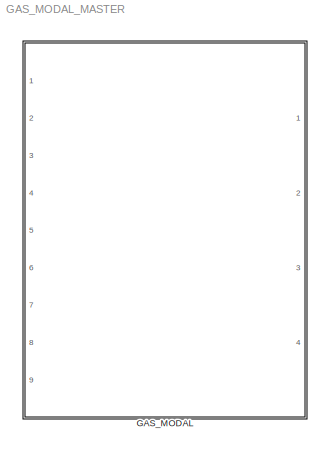
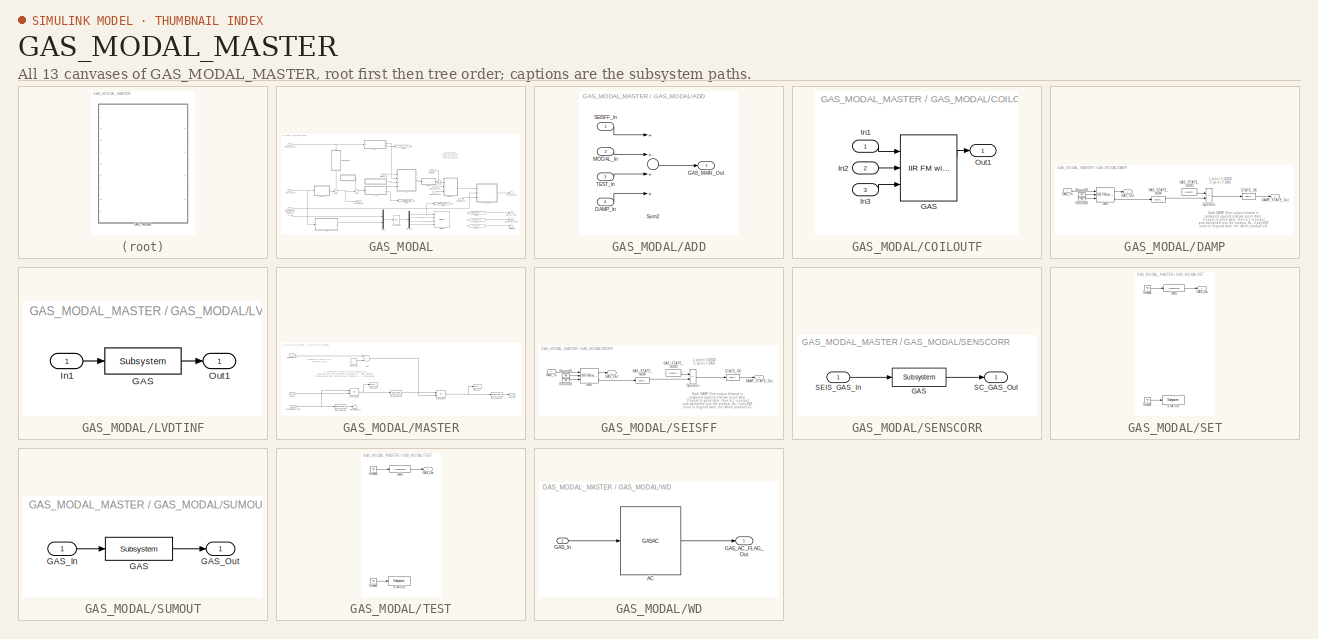
[diagram: thumbnail index - all 13 canvases of the model, root first then tree order]
MODEL GAS_MODAL_MASTER
KIND library
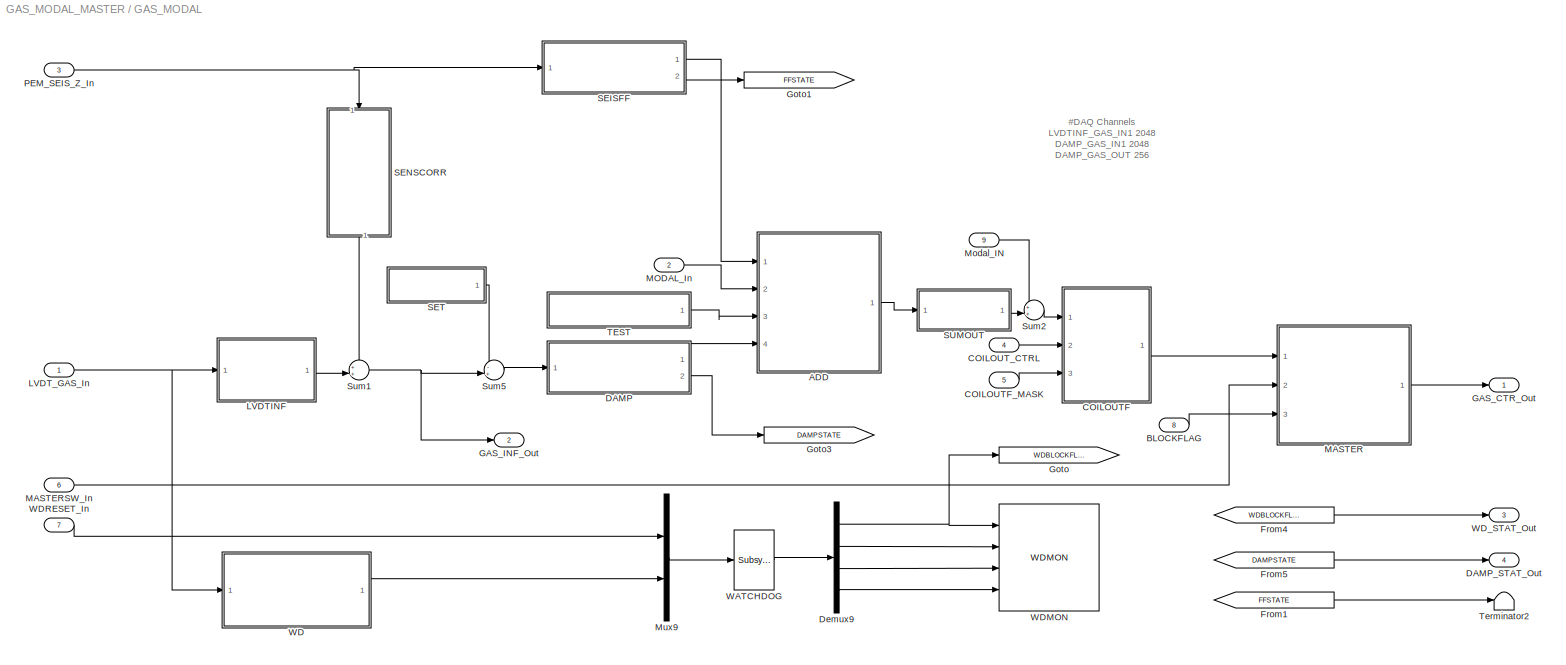
BLOCK [SubSystem] GAS_MODAL
  Ports = [9, 4]
  RequestExecContextInheritance = off
  SID = 1
  Variant = off
BLOCK [SubSystem] GAS_MODAL/ADD
  Ports = [4, 1]
  RequestExecContextInheritance = off
  SID = 7
  Variant = off
BLOCK [Inport] GAS_MODAL/ADD/DAMP_In
  IconDisplay = Port number
  Port = 4
  SID = 9
BLOCK [Outport] GAS_MODAL/ADD/GAS_MAIN_Out
  IconDisplay = Port number
  SID = 15
BLOCK [Inport] GAS_MODAL/ADD/MODAL_In
  IconDisplay = Port number
  Port = 2
  SID = 79
BLOCK [Inport] GAS_MODAL/ADD/SEISFF_In
  IconDisplay = Port number
  SID = 148
BLOCK [Sum] GAS_MODAL/ADD/Sum2
  InputSameDT = off
  Inputs = ++++
  OutDataTypeStr = Inherit: Inherit via internal rule
  Ports = [4, 1]
  SID = 14
  SaturateOnIntegerOverflow = off
BLOCK [Inport] GAS_MODAL/ADD/TEST_In
  IconDisplay = Port number
  Port = 3
  SID = 8
BLOCK [Inport] GAS_MODAL/BLOCKFLAG
  IconDisplay = Port number
  Port = 8
  SID = 81
BLOCK [SubSystem] GAS_MODAL/COILOUTF
  Ports = [3, 1]
  RequestExecContextInheritance = off
  SID = 16
  Variant = off
BLOCK [Reference] GAS_MODAL/COILOUTF/GAS  REF=cdsFiltCtrl/IIR FM with control
  AttributesFormatString = %<Tag>
  Description = cdsFiltCntrl is the standard IIR filter module (exactly the same as cdsFilt) but with added control data output 'Ctrl'. Filter module digital signal output appears on the first output, which is called 'Val'. 'Ctrl' output has a bit pattern encoding the state of filter's on/off switches (FM1 through FM10). The bit values are:\n                                                                        ...<+4621ch>  <repeated x3 — deduplicated; at blocks: GAS>
  Ports = [3, 2]
  SID = 20
  SourceBlock = cdsFiltCtrl/IIR FM with control
  SourceType = SubSystem
  Tag = cdsFiltCtrl
BLOCK [Inport] GAS_MODAL/COILOUTF/In1
  IconDisplay = Port number
  SID = 17
BLOCK [Inport] GAS_MODAL/COILOUTF/In2
  IconDisplay = Port number
  Port = 2
  SID = 18
BLOCK [Inport] GAS_MODAL/COILOUTF/In3
  IconDisplay = Port number
  Port = 3
  SID = 19
BLOCK [Outport] GAS_MODAL/COILOUTF/Out1
  IconDisplay = Port number
  SID = 21
BLOCK [Inport] GAS_MODAL/COILOUTF_MASK
  IconDisplay = Port number
  Port = 5
  SID = 4
BLOCK [Inport] GAS_MODAL/COILOUT_CTRL
  IconDisplay = Port number
  Port = 4
  SID = 3
BLOCK [SubSystem] GAS_MODAL/DAMP
  Ports = [1, 2]
  RequestExecContextInheritance = off
  SID = 22
  Variant = off
BLOCK [Outport] GAS_MODAL/DAMP/DAMP_STATE_Out
  IconDisplay = Port number
  Port = 2
  SID = 32
BLOCK [Reference] GAS_MODAL/DAMP/GAS  REF=cdsFiltCtrl/IIR FM with control
  AttributesFormatString = %<Tag>
  Ports = [3, 2]
  SID = 24
  SourceBlock = cdsFiltCtrl/IIR FM with control
  SourceType = SubSystem
  Tag = cdsFiltCtrl
BLOCK [Inport] GAS_MODAL/DAMP/GAS_In
  IconDisplay = Port number
  SID = 23
BLOCK [Outport] GAS_MODAL/DAMP/GAS_Out
  IconDisplay = Port number
  SID = 31
BLOCK [Reference] GAS_MODAL/DAMP/GAS_STATE_GOOD  REF=cdsEpicsIn/Subsystem
  AttributesFormatString = %<Tag>
  Description = Purpose:                                                                              \nCreate an EPICS input channel connection to the FE realtime controls.                 \n                                                                                      \nOperation:                                                                            \nOutputs value from an EPICS ai record. Value is ...<+266ch>
  Ports = [0, 1]
  SID = 25
  SourceBlock = cdsEpicsIn/Subsystem
  SourceType = SubSystem
  Tag = cdsEpicsIn
BLOCK [Reference] GAS_MODAL/DAMP/GAS_STATE_NOW  REF=cdsEpicsOut/Subsystem
  AttributesFormatString = %<Tag>
  Description = Purpose:                                          \nOutput a FE signal to an EPICS channel.           \n                                                  \nOperation:                                        \nTakes input value and passes it to EPICS record.  \n                                                  \nUsage:                                            \nName the part with the desired EPICS...<+14ch>  <repeated x7 — deduplicated; at blocks: GAS_STATE_NOW, STATE_OK, OUT_GASMON, PWD_GASMON, SWITCHMON>
  Ports = [1, 1]
  SID = 26
  SourceBlock = cdsEpicsOut/Subsystem
  SourceType = SubSystem
  Tag = cdsEpicsOutput
BLOCK [Ground] GAS_MODAL/DAMP/Ground6
  SID = 27
BLOCK [Ground] GAS_MODAL/DAMP/Ground8
  SID = 28
BLOCK [RelationalOperator] GAS_MODAL/DAMP/Operator
  InputSameDT = off
  Operator = ==
  OutDataTypeStr = boolean
  Ports = [2, 1]
  SID = 29
BLOCK [Reference] GAS_MODAL/DAMP/STATE_OK  REF=cdsEpicsOut/Subsystem
  AttributesFormatString = %<Tag>
  Ports = [1, 1]
  SID = 30
  SourceBlock = cdsEpicsOut/Subsystem
  SourceType = SubSystem
  Tag = cdsEpicsOutput
BLOCK [Outport] GAS_MODAL/DAMP_STAT_Out
  IconDisplay = Port number
  Port = 4
  SID = 75
BLOCK [Demux] GAS_MODAL/Demux9
  DisplayOption = bar
  Ports = [1, 4]
  SID = 35
BLOCK [From] GAS_MODAL/From1
  CloseFcn = tagdialog Close
  GotoTag = FFSTATE
  SID = 149
BLOCK [From] GAS_MODAL/From4
  CloseFcn = tagdialog Close
  GotoTag = WDBLOCKFLAG
  SID = 37
BLOCK [From] GAS_MODAL/From5
  CloseFcn = tagdialog Close
  GotoTag = DAMPSTATE
  SID = 38
BLOCK [Outport] GAS_MODAL/GAS_CTR_Out
  IconDisplay = Port number
  SID = 73
BLOCK [Outport] GAS_MODAL/GAS_INF_Out
  IconDisplay = Port number
  Port = 2
  SID = 78
BLOCK [Goto] GAS_MODAL/Goto
  GotoTag = WDBLOCKFLAG
  SID = 39
BLOCK [Goto] GAS_MODAL/Goto1
  GotoTag = FFSTATE
  SID = 147
BLOCK [Goto] GAS_MODAL/Goto3
  GotoTag = DAMPSTATE
  SID = 40
BLOCK [SubSystem] GAS_MODAL/LVDTINF
  Ports = [1, 1]
  RequestExecContextInheritance = off
  SID = 41
  Variant = off
BLOCK [Reference] GAS_MODAL/LVDTINF/GAS  REF=cdsFilt/Subsystem
  AttributesFormatString = %<Tag>
  Description = Purpose:                                                                                                                                                                                                                                  \nStandard CDS IIR filter module.                                                                                                                                     ...<+1302ch>  <repeated x5 — deduplicated; at blocks: GAS>
  Ports = [1, 1]
  SID = 43
  SourceBlock = cdsFilt/Subsystem
  SourceType = SubSystem
  Tag = cdsFilt
BLOCK [Inport] GAS_MODAL/LVDTINF/In1
  IconDisplay = Port number
  SID = 42
BLOCK [Outport] GAS_MODAL/LVDTINF/Out1
  IconDisplay = Port number
  SID = 44
BLOCK [Inport] GAS_MODAL/LVDT_GAS_In
  IconDisplay = Port number
  SID = 77
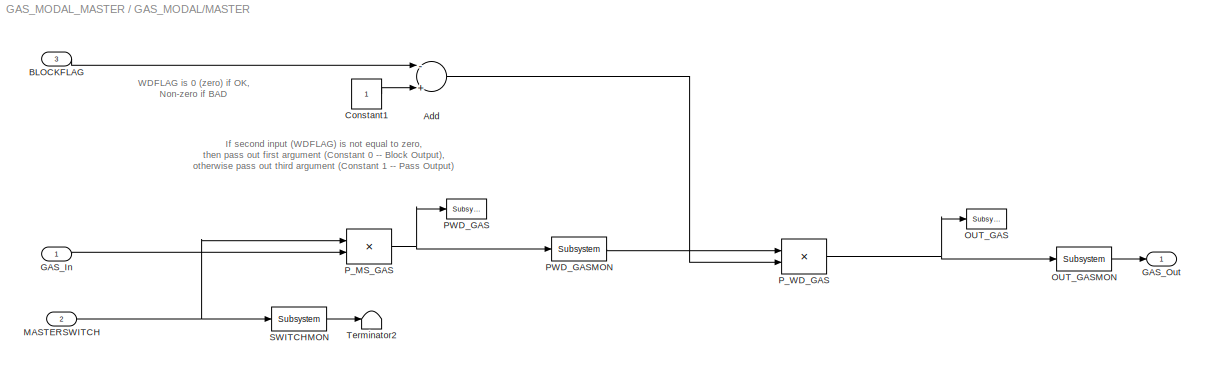
BLOCK [SubSystem] GAS_MODAL/MASTER
  Ports = [3, 1]
  RequestExecContextInheritance = off
  SID = 45
  Variant = off
BLOCK [Sum] GAS_MODAL/MASTER/Add
  InputSameDT = off
  Inputs = -+
  OutDataTypeStr = Inherit: Inherit via internal rule
  Ports = [2, 1]
  SID = 82
  SaturateOnIntegerOverflow = off
BLOCK [Inport] GAS_MODAL/MASTER/BLOCKFLAG
  IconDisplay = Port number
  Port = 3
  SID = 48
BLOCK [Constant] GAS_MODAL/MASTER/Constant1
  SID = 51
BLOCK [Inport] GAS_MODAL/MASTER/GAS_In
  IconDisplay = Port number
  SID = 46
BLOCK [Outport] GAS_MODAL/MASTER/GAS_Out
  IconDisplay = Port number
  SID = 60
BLOCK [Inport] GAS_MODAL/MASTER/MASTERSWITCH
  IconDisplay = Port number
  Port = 2
  SID = 47
BLOCK [Reference] GAS_MODAL/MASTER/OUT_GAS  REF=cdsTP/Subsystem
  AttributesFormatString = %<Tag>
  Ports = [1]
  SID = 52
  SourceBlock = cdsTP/Subsystem
  SourceType = SubSystem
  Tag = Test Point
BLOCK [Reference] GAS_MODAL/MASTER/OUT_GASMON  REF=cdsEpicsOut/Subsystem
  AttributesFormatString = %<Tag>
  Ports = [1, 1]
  SID = 53
  SourceBlock = cdsEpicsOut/Subsystem
  SourceType = SubSystem
  Tag = cdsEpicsOutput
BLOCK [Reference] GAS_MODAL/MASTER/PWD_GAS  REF=cdsTP/Subsystem
  AttributesFormatString = %<Tag>
  Ports = [1]
  SID = 54
  SourceBlock = cdsTP/Subsystem
  SourceType = SubSystem
  Tag = Test Point
BLOCK [Reference] GAS_MODAL/MASTER/PWD_GASMON  REF=cdsEpicsOut/Subsystem
  AttributesFormatString = %<Tag>
  Ports = [1, 1]
  SID = 55
  SourceBlock = cdsEpicsOut/Subsystem
  SourceType = SubSystem
  Tag = cdsEpicsOutput
BLOCK [Product] GAS_MODAL/MASTER/P_MS_GAS
  InputSameDT = off
  OutDataTypeStr = Inherit: Inherit via internal rule
  Ports = [2, 1]
  SID = 56
  SaturateOnIntegerOverflow = off
BLOCK [Product] GAS_MODAL/MASTER/P_WD_GAS
  InputSameDT = off
  OutDataTypeStr = Inherit: Inherit via internal rule
  Ports = [2, 1]
  SID = 57
  SaturateOnIntegerOverflow = off
BLOCK [Reference] GAS_MODAL/MASTER/SWITCHMON  REF=cdsEpicsOut/Subsystem
  AttributesFormatString = %<Tag>
  Ports = [1, 1]
  SID = 58
  SourceBlock = cdsEpicsOut/Subsystem
  SourceType = SubSystem
  Tag = cdsEpicsOutput
BLOCK [Terminator] GAS_MODAL/MASTER/Terminator2
  SID = 59
BLOCK [Inport] GAS_MODAL/MASTERSW_In
  IconDisplay = Port number
  Port = 6
  SID = 5
BLOCK [Inport] GAS_MODAL/MODAL_In
  IconDisplay = Port number
  Port = 2
  SID = 80
BLOCK [Inport] GAS_MODAL/Modal_IN
  IconDisplay = Port number
  Port = 9
  SID = 154
BLOCK [Mux] GAS_MODAL/Mux9
  DisplayOption = bar
  Inputs = 2
  Ports = [2, 1]
  SID = 63
BLOCK [Inport] GAS_MODAL/PEM_SEIS_Z_In
  IconDisplay = Port number
  Port = 3
  SID = 152
BLOCK [SubSystem] GAS_MODAL/SEISFF
  Ports = [1, 2]
  RequestExecContextInheritance = off
  SID = 134
  Variant = off
BLOCK [Outport] GAS_MODAL/SEISFF/DAMP_STATE_Out
  IconDisplay = Port number
  Port = 2
  SID = 144
BLOCK [Reference] GAS_MODAL/SEISFF/GAS  REF=cdsFiltCtrl/IIR FM with control
  AttributesFormatString = %<Tag>
  Ports = [3, 2]
  SID = 136
  SourceBlock = cdsFiltCtrl/IIR FM with control
  SourceType = SubSystem
  Tag = cdsFiltCtrl
BLOCK [Inport] GAS_MODAL/SEISFF/GAS_In
  IconDisplay = Port number
  SID = 135
BLOCK [Outport] GAS_MODAL/SEISFF/GAS_Out
  IconDisplay = Port number
  SID = 143
BLOCK [Reference] GAS_MODAL/SEISFF/GAS_STATE_GOOD  REF=cdsEpicsIn/Subsystem
  AttributesFormatString = %<Tag>
  Description = Purpose:                                                                              \nCreate an EPICS input channel connection to the FE realtime controls.                 \n                                                                                      \nOperation:                                                                            \nOutputs value from an EPICS ai record. Value is ...<+266ch>
  Ports = [0, 1]
  SID = 137
  SourceBlock = cdsEpicsIn/Subsystem
  SourceType = SubSystem
  Tag = cdsEpicsIn
BLOCK [Reference] GAS_MODAL/SEISFF/GAS_STATE_NOW  REF=cdsEpicsOut/Subsystem
  AttributesFormatString = %<Tag>
  Ports = [1, 1]
  SID = 138
  SourceBlock = cdsEpicsOut/Subsystem
  SourceType = SubSystem
  Tag = cdsEpicsOutput
BLOCK [Ground] GAS_MODAL/SEISFF/Ground6
  SID = 139
BLOCK [Ground] GAS_MODAL/SEISFF/Ground8
  SID = 140
BLOCK [RelationalOperator] GAS_MODAL/SEISFF/Operator
  InputSameDT = off
  Operator = ==
  OutDataTypeStr = boolean
  Ports = [2, 1]
  SID = 141
BLOCK [Reference] GAS_MODAL/SEISFF/STATE_OK  REF=cdsEpicsOut/Subsystem
  AttributesFormatString = %<Tag>
  Ports = [1, 1]
  SID = 142
  SourceBlock = cdsEpicsOut/Subsystem
  SourceType = SubSystem
  Tag = cdsEpicsOutput
BLOCK [SubSystem] GAS_MODAL/SENSCORR
  Ports = [1, 1]
  RequestExecContextInheritance = off
  SID = 100
  Variant = off
BLOCK [Reference] GAS_MODAL/SENSCORR/GAS  REF=cdsFilt/Subsystem
  AttributesFormatString = %<Tag>
  Ports = [1, 1]
  SID = 103
  SourceBlock = cdsFilt/Subsystem
  SourceType = SubSystem
  Tag = cdsFilt
BLOCK [Outport] GAS_MODAL/SENSCORR/SC_GAS_Out
  IconDisplay = Port number
  SID = 105
BLOCK [Inport] GAS_MODAL/SENSCORR/SEIS_GAS_In
  IconDisplay = Port number
  SID = 101
BLOCK [SubSystem] GAS_MODAL/SET
  Ports = [0, 1]
  RequestExecContextInheritance = off
  SID = 83
  Variant = off
BLOCK [Reference] GAS_MODAL/SET/GAS  REF=cdsFilt/Subsystem
  AttributesFormatString = %<Tag>
  Ports = [1, 1]
  SID = 95
  SourceBlock = cdsFilt/Subsystem
  SourceType = SubSystem
  Tag = cdsFilt
BLOCK [Outport] GAS_MODAL/SET/GAS_Out
  IconDisplay = Port number
  SID = 99
BLOCK [Ground] GAS_MODAL/SET/Ground1
  SID = 96
BLOCK [Ground] GAS_MODAL/SET/Ground7
  SID = 97
BLOCK [Reference] GAS_MODAL/SET/STATUS  REF=cdsEpicsBinIn/Subsystem
  AttributesFormatString = %<Tag>
  Description = Purpose:                                                                            \nCreate an EPICS binary (0 or 1) input channel to the FE realtime controls.          \n                                                                                    \nOperation:                                                                          \nOutputs value from an EPICS ai record. Value is binary i...<+252ch>
  Ports = [1, 1]
  SID = 98
  SourceBlock = cdsEpicsBinIn/Subsystem
  SourceType = SubSystem
  Tag = cdsEpicsBinIn
BLOCK [SubSystem] GAS_MODAL/SUMOUT
  Ports = [1, 1]
  RequestExecContextInheritance = off
  SID = 85
  Variant = off
BLOCK [Reference] GAS_MODAL/SUMOUT/GAS  REF=cdsFilt/Subsystem
  AttributesFormatString = %<Tag>
  Ports = [1, 1]
  SID = 89
  SourceBlock = cdsFilt/Subsystem
  SourceType = SubSystem
  Tag = cdsFilt
BLOCK [Inport] GAS_MODAL/SUMOUT/GAS_In
  IconDisplay = Port number
  SID = 86
BLOCK [Outport] GAS_MODAL/SUMOUT/GAS_Out
  IconDisplay = Port number
  SID = 92
BLOCK [Sum] GAS_MODAL/Sum1
  IconShape = round
  InputSameDT = off
  Inputs = ++|
  OutDataTypeStr = Inherit: Inherit via internal rule
  Ports = [2, 1]
  SID = 107
  SaturateOnIntegerOverflow = off
BLOCK [Sum] GAS_MODAL/Sum2
  IconShape = round
  InputSameDT = off
  Inputs = ++|
  OutDataTypeStr = Inherit: Inherit via internal rule
  Ports = [2, 1]
  SID = 153
  SaturateOnIntegerOverflow = off
BLOCK [Sum] GAS_MODAL/Sum5
  IconShape = round
  InputSameDT = off
  Inputs = -+|
  OutDataTypeStr = Inherit: Inherit via internal rule
  Ports = [2, 1]
  SID = 84
  SaturateOnIntegerOverflow = off
BLOCK [SubSystem] GAS_MODAL/TEST
  Ports = [0, 1]
  RequestExecContextInheritance = off
  SID = 64
  Variant = off
BLOCK [Reference] GAS_MODAL/TEST/GAS  REF=cdsFilt/Subsystem
  AttributesFormatString = %<Tag>
  Ports = [1, 1]
  SID = 65
  SourceBlock = cdsFilt/Subsystem
  SourceType = SubSystem
  Tag = cdsFilt
BLOCK [Outport] GAS_MODAL/TEST/GAS_Out
  IconDisplay = Port number
  SID = 69
BLOCK [Ground] GAS_MODAL/TEST/Ground1
  SID = 66
BLOCK [Ground] GAS_MODAL/TEST/Ground7
  SID = 67
BLOCK [Reference] GAS_MODAL/TEST/STATUS  REF=cdsEpicsBinIn/Subsystem
  AttributesFormatString = %<Tag>
  Description = Purpose:                                                                            \nCreate an EPICS binary (0 or 1) input channel to the FE realtime controls.          \n                                                                                    \nOperation:                                                                          \nOutputs value from an EPICS ai record. Value is binary i...<+252ch>
  Ports = [1, 1]
  SID = 68
  SourceBlock = cdsEpicsBinIn/Subsystem
  SourceType = SubSystem
  Tag = cdsEpicsBinIn
BLOCK [Terminator] GAS_MODAL/Terminator2
  SID = 151
BLOCK [Reference] GAS_MODAL/WATCHDOG  REF=cdsFunctionCall/Subsystem
  AttributesFormatString = %<Tag>\\n%<Description>
  Description = inline OSEMWATCHDOG <path>
  Ports = [1, 1]
  SID = 70
  SourceBlock = cdsFunctionCall/Subsystem
  SourceType = SubSystem
  Tag = cdsFunctionCall
BLOCK [SubSystem] GAS_MODAL/WD
  Ports = [1, 1]
  RequestExecContextInheritance = off
  SID = 71
  Variant = off
BLOCK [Reference] GAS_MODAL/WD/AC  REF=GAS_WD_MASTER/GASAC
  Ports = [1, 1]
  SID = 156
  SourceBlock = GAS_WD_MASTER/GASAC
  SourceType = SubSystem
BLOCK [Outport] GAS_MODAL/WD/GAS_AC_FLAG_Out
  IconDisplay = Port number
  SID = 157
BLOCK [Inport] GAS_MODAL/WD/GAS_In
  IconDisplay = Port number
  SID = 155
BLOCK [Reference] GAS_MODAL/WDMON  REF=VIS_LIB/WDMON
  Ports = [4]
  SID = 72
  SourceBlock = VIS_LIB/WDMON
  SourceType = SubSystem
BLOCK [Inport] GAS_MODAL/WDRESET_In
  IconDisplay = Port number
  Port = 7
  SID = 6
BLOCK [Outport] GAS_MODAL/WD_STAT_Out
  IconDisplay = Port number
  Port = 3
  SID = 74
ANNOTATION GAS_MODAL: #DAQ Channels\nLVDTINF_GAS_IN1 2048\nDAMP_GAS_IN1 2048\nDAMP_GAS_OUT 256
ANNOTATION GAS_MODAL/DAMP: 1 (one) if GOOD\n0 (zero) if BAD
ANNOTATION GAS_MODAL/DAMP: Each DAMP filter output bitword is \ncompared against a known good state.\nIf equal to good state, then a 1 is output \nand multiplied into the product. So, if any DOF\nis not in its good state, the whole product is 0.
ANNOTATION GAS_MODAL/MASTER: If second input (WDFLAG) is not equal to zero, \nthen pass out first argument (Constant 0 -- Block Output), \notherwise pass out third argument (Constant 1 -- Pass Output)
ANNOTATION GAS_MODAL/MASTER: WDFLAG is 0 (zero) if OK,\nNon-zero if BAD
ANNOTATION GAS_MODAL/SEISFF: 1 (one) if GOOD\n0 (zero) if BAD
ANNOTATION GAS_MODAL/SEISFF: Each DAMP filter output bitword is \ncompared against a known good state.\nIf equal to good state, then a 1 is output \nand multiplied into the product. So, if any DOF\nis not in its good state, the whole product is 0.
LINE GAS_MODAL/ADD/DAMP_In:1 -> GAS_MODAL/ADD/Sum2:4
LINE GAS_MODAL/ADD/MODAL_In:1 -> GAS_MODAL/ADD/Sum2:2
LINE GAS_MODAL/ADD/SEISFF_In:1 -> GAS_MODAL/ADD/Sum2:1
LINE GAS_MODAL/ADD/Sum2:1 -> GAS_MODAL/ADD/GAS_MAIN_Out:1
LINE GAS_MODAL/ADD/TEST_In:1 -> GAS_MODAL/ADD/Sum2:3
LINE GAS_MODAL/ADD:1 -> GAS_MODAL/SUMOUT:1
LINE GAS_MODAL/BLOCKFLAG:1 -> GAS_MODAL/MASTER:3
LINE GAS_MODAL/COILOUTF/GAS:1 -> GAS_MODAL/COILOUTF/Out1:1
LINE GAS_MODAL/COILOUTF/In1:1 -> GAS_MODAL/COILOUTF/GAS:1
LINE GAS_MODAL/COILOUTF/In2:1 -> GAS_MODAL/COILOUTF/GAS:2
LINE GAS_MODAL/COILOUTF/In3:1 -> GAS_MODAL/COILOUTF/GAS:3
LINE GAS_MODAL/COILOUTF:1 -> GAS_MODAL/MASTER:1
LINE GAS_MODAL/COILOUTF_MASK:1 -> GAS_MODAL/COILOUTF:3
LINE GAS_MODAL/COILOUT_CTRL:1 -> GAS_MODAL/COILOUTF:2
LINE GAS_MODAL/DAMP/GAS:1 -> GAS_MODAL/DAMP/GAS_Out:1
LINE GAS_MODAL/DAMP/GAS:2 -> GAS_MODAL/DAMP/GAS_STATE_NOW:1
LINE GAS_MODAL/DAMP/GAS_In:1 -> GAS_MODAL/DAMP/GAS:1
LINE GAS_MODAL/DAMP/GAS_STATE_GOOD:1 -> GAS_MODAL/DAMP/Operator:1
LINE GAS_MODAL/DAMP/GAS_STATE_NOW:1 -> GAS_MODAL/DAMP/Operator:2
LINE GAS_MODAL/DAMP/Ground6:1 -> GAS_MODAL/DAMP/GAS:2
LINE GAS_MODAL/DAMP/Ground8:1 -> GAS_MODAL/DAMP/GAS:3
LINE GAS_MODAL/DAMP/Operator:1 -> GAS_MODAL/DAMP/STATE_OK:1
LINE GAS_MODAL/DAMP/STATE_OK:1 -> GAS_MODAL/DAMP/DAMP_STATE_Out:1
LINE GAS_MODAL/DAMP:1 -> GAS_MODAL/ADD:4
LINE GAS_MODAL/DAMP:2 -> GAS_MODAL/Goto3:1
NET GAS_MODAL/Demux9:1 -> GAS_MODAL/Goto:1, GAS_MODAL/WDMON:1
LINE GAS_MODAL/Demux9:2 -> GAS_MODAL/WDMON:2
LINE GAS_MODAL/Demux9:3 -> GAS_MODAL/WDMON:3
LINE GAS_MODAL/Demux9:4 -> GAS_MODAL/WDMON:4
LINE GAS_MODAL/From1:1 -> GAS_MODAL/Terminator2:1
LINE GAS_MODAL/From4:1 -> GAS_MODAL/WD_STAT_Out:1
LINE GAS_MODAL/From5:1 -> GAS_MODAL/DAMP_STAT_Out:1
LINE GAS_MODAL/LVDTINF/GAS:1 -> GAS_MODAL/LVDTINF/Out1:1
LINE GAS_MODAL/LVDTINF/In1:1 -> GAS_MODAL/LVDTINF/GAS:1
LINE GAS_MODAL/LVDTINF:1 -> GAS_MODAL/Sum1:2
NET GAS_MODAL/LVDT_GAS_In:1 -> GAS_MODAL/LVDTINF:1, GAS_MODAL/WD:1
LINE GAS_MODAL/MASTER/Add:1 -> GAS_MODAL/MASTER/P_WD_GAS:2
LINE GAS_MODAL/MASTER/BLOCKFLAG:1 -> GAS_MODAL/MASTER/Add:1
LINE GAS_MODAL/MASTER/Constant1:1 -> GAS_MODAL/MASTER/Add:2
LINE GAS_MODAL/MASTER/GAS_In:1 -> GAS_MODAL/MASTER/P_MS_GAS:2
NET GAS_MODAL/MASTER/MASTERSWITCH:1 -> GAS_MODAL/MASTER/P_MS_GAS:1, GAS_MODAL/MASTER/SWITCHMON:1
LINE GAS_MODAL/MASTER/OUT_GASMON:1 -> GAS_MODAL/MASTER/GAS_Out:1
LINE GAS_MODAL/MASTER/PWD_GASMON:1 -> GAS_MODAL/MASTER/P_WD_GAS:1
NET GAS_MODAL/MASTER/P_MS_GAS:1 -> GAS_MODAL/MASTER/PWD_GAS:1, GAS_MODAL/MASTER/PWD_GASMON:1
NET GAS_MODAL/MASTER/P_WD_GAS:1 -> GAS_MODAL/MASTER/OUT_GAS:1, GAS_MODAL/MASTER/OUT_GASMON:1
LINE GAS_MODAL/MASTER/SWITCHMON:1 -> GAS_MODAL/MASTER/Terminator2:1
LINE GAS_MODAL/MASTER:1 -> GAS_MODAL/GAS_CTR_Out:1
LINE GAS_MODAL/MASTERSW_In:1 -> GAS_MODAL/MASTER:2
LINE GAS_MODAL/MODAL_In:1 -> GAS_MODAL/ADD:2
LINE GAS_MODAL/Modal_IN:1 -> GAS_MODAL/Sum2:1
LINE GAS_MODAL/Mux9:1 -> GAS_MODAL/WATCHDOG:1
NET GAS_MODAL/PEM_SEIS_Z_In:1 -> GAS_MODAL/SEISFF:1, GAS_MODAL/SENSCORR:1
LINE GAS_MODAL/SEISFF/GAS:1 -> GAS_MODAL/SEISFF/GAS_Out:1
LINE GAS_MODAL/SEISFF/GAS:2 -> GAS_MODAL/SEISFF/GAS_STATE_NOW:1
LINE GAS_MODAL/SEISFF/GAS_In:1 -> GAS_MODAL/SEISFF/GAS:1
LINE GAS_MODAL/SEISFF/GAS_STATE_GOOD:1 -> GAS_MODAL/SEISFF/Operator:1
LINE GAS_MODAL/SEISFF/GAS_STATE_NOW:1 -> GAS_MODAL/SEISFF/Operator:2
LINE GAS_MODAL/SEISFF/Ground6:1 -> GAS_MODAL/SEISFF/GAS:2
LINE GAS_MODAL/SEISFF/Ground8:1 -> GAS_MODAL/SEISFF/GAS:3
LINE GAS_MODAL/SEISFF/Operator:1 -> GAS_MODAL/SEISFF/STATE_OK:1
LINE GAS_MODAL/SEISFF/STATE_OK:1 -> GAS_MODAL/SEISFF/DAMP_STATE_Out:1
LINE GAS_MODAL/SEISFF:1 -> GAS_MODAL/ADD:1
LINE GAS_MODAL/SEISFF:2 -> GAS_MODAL/Goto1:1
LINE GAS_MODAL/SENSCORR/GAS:1 -> GAS_MODAL/SENSCORR/SC_GAS_Out:1
LINE GAS_MODAL/SENSCORR/SEIS_GAS_In:1 -> GAS_MODAL/SENSCORR/GAS:1
LINE GAS_MODAL/SENSCORR:1 -> GAS_MODAL/Sum1:1
LINE GAS_MODAL/SET/GAS:1 -> GAS_MODAL/SET/GAS_Out:1
LINE GAS_MODAL/SET/Ground1:1 -> GAS_MODAL/SET/GAS:1
LINE GAS_MODAL/SET/Ground7:1 -> GAS_MODAL/SET/STATUS:1
LINE GAS_MODAL/SET:1 -> GAS_MODAL/Sum5:1
LINE GAS_MODAL/SUMOUT/GAS:1 -> GAS_MODAL/SUMOUT/GAS_Out:1
LINE GAS_MODAL/SUMOUT/GAS_In:1 -> GAS_MODAL/SUMOUT/GAS:1
LINE GAS_MODAL/SUMOUT:1 -> GAS_MODAL/Sum2:2
NET GAS_MODAL/Sum1:1 -> GAS_MODAL/GAS_INF_Out:1, GAS_MODAL/Sum5:2
LINE GAS_MODAL/Sum2:1 -> GAS_MODAL/COILOUTF:1
LINE GAS_MODAL/Sum5:1 -> GAS_MODAL/DAMP:1
LINE GAS_MODAL/TEST/GAS:1 -> GAS_MODAL/TEST/GAS_Out:1
LINE GAS_MODAL/TEST/Ground1:1 -> GAS_MODAL/TEST/GAS:1
LINE GAS_MODAL/TEST/Ground7:1 -> GAS_MODAL/TEST/STATUS:1
LINE GAS_MODAL/TEST:1 -> GAS_MODAL/ADD:3
LINE GAS_MODAL/WATCHDOG:1 -> GAS_MODAL/Demux9:1
LINE GAS_MODAL/WD/AC:1 -> GAS_MODAL/WD/GAS_AC_FLAG_Out:1
LINE GAS_MODAL/WD/GAS_In:1 -> GAS_MODAL/WD/AC:1
LINE GAS_MODAL/WD:1 -> GAS_MODAL/Mux9:2
LINE GAS_MODAL/WDRESET_In:1 -> GAS_MODAL/Mux9:1
note: NET lines group one-source signal fan-out (src -> all destinations, sorted); 1:1 wires keep LINE
note: 1 file-system path scrubbed to <path> (not preserved elsewhere — flat text is the only slx artifact)
